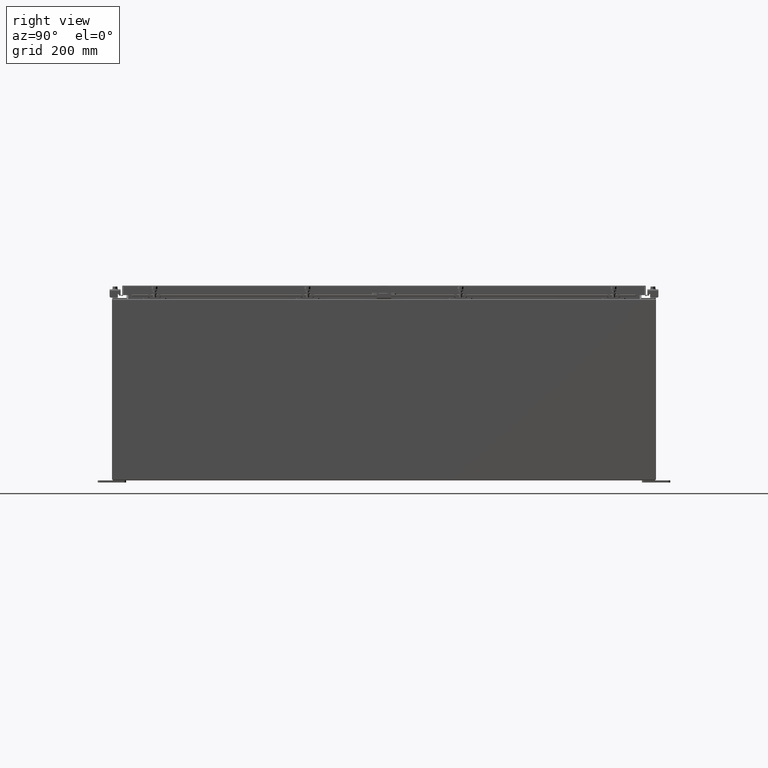
[diagram: clean part render]
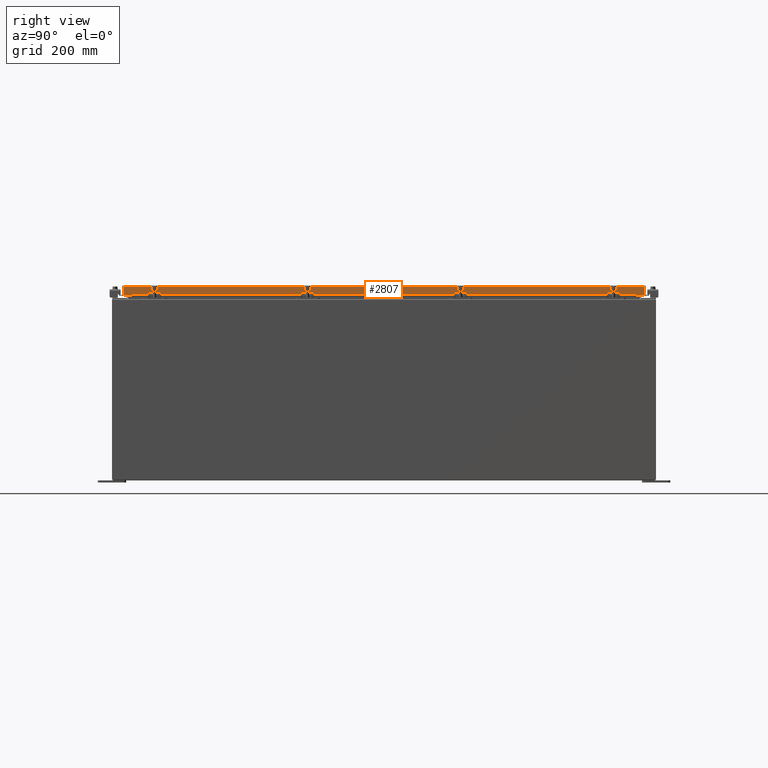
[diagram: same view with one face highlighted and labeled with its STEP entity id]
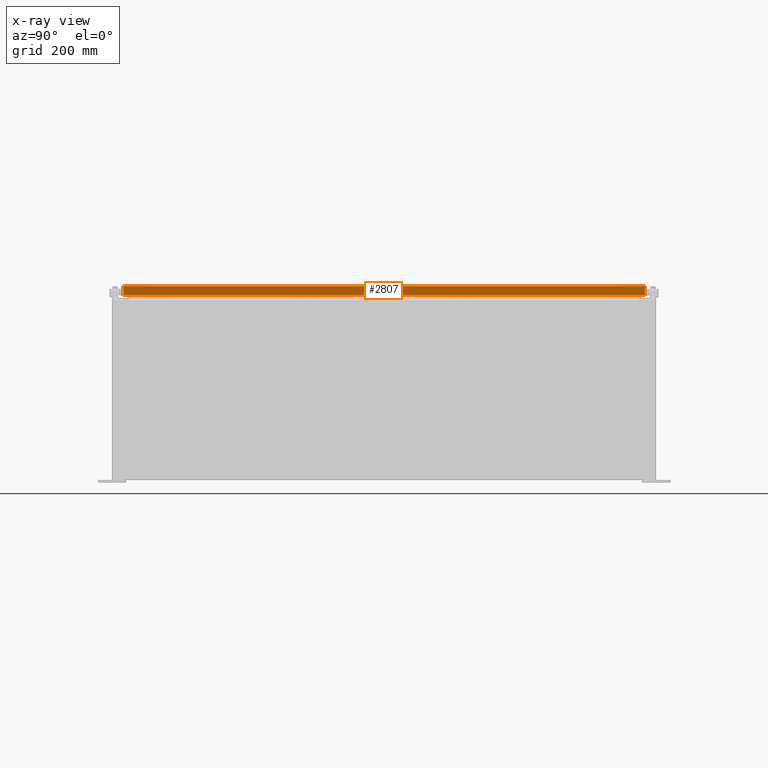
[diagram: x-ray of the same camera — body ghosted, the highlighted face saturated]
A machine part, right view. The second image highlights one B-rep face of the part: STEP entity #2807.
The next image is the same camera in x-ray: the body ghosted, the highlighted face saturated — about 0% of this face is hidden behind the body in this view.
In plain terms, the highlighted planar face has unit normal (1, 0, 0).
Its self-contained STEP definition (entity closure, byte-faithful):
#2590 = CARTESIAN_POINT ( 'NONE',  ( 17.07799999999999600, 22.25515786437628000, -0.8500000000000020900 ) ) ;
#2807 = ADVANCED_FACE ( 'NONE', ( #51925 ), #45065, .T. ) ;
#3238 = CARTESIAN_POINT ( 'NONE',  ( 17.07799999999999600, 22.25515786437627200, -0.8500000000000020900 ) ) ;
#6435 = EDGE_CURVE ( 'NONE', #14910, #16924, #51865, .T. ) ;
#7010 = AXIS2_PLACEMENT_3D ( 'NONE', #49175, #19476, #49351 ) ;
#10087 = CARTESIAN_POINT ( 'NONE',  ( 17.07799999999999900, -23.00515786437626900, -0.07470000000000015500 ) ) ;
#13737 = CARTESIAN_POINT ( 'NONE',  ( 17.07800000000000300, -23.09400000000000100, -0.8499999999999999800 ) ) ;
#13774 = VECTOR ( 'NONE', #19623, 39.37007874015748100 ) ;
#14459 = CARTESIAN_POINT ( 'NONE',  ( 17.07799999999999900, 23.00515786437627600, 2.098059259134154200E-013 ) ) ;
#14910 = VERTEX_POINT ( 'NONE', #53985 ) ;
#15601 = EDGE_LOOP ( 'NONE', ( #30521, #42739, #35129, #42772, #16709, #28397 ) ) ;
#16709 = ORIENTED_EDGE ( 'NONE', *, *, #41833, .T. ) ;
#16924 = VERTEX_POINT ( 'NONE', #25035 ) ;
#18760 = DIRECTION ( 'NONE',  ( -2.818880942772360100E-015, -6.982962677686267500E-015, 1.000000000000000000 ) ) ;
#18817 = EDGE_CURVE ( 'NONE', #52269, #23241, #36515, .T. ) ;
#19476 = DIRECTION ( 'NONE',  ( 1.000000000000000000, 0.0000000000000000000, 2.818880942772360100E-015 ) ) ;
#19623 = DIRECTION ( 'NONE',  ( 0.0000000000000000000, -1.000000000000000000, 0.0000000000000000000 ) ) ;
#21388 = VERTEX_POINT ( 'NONE', #42972 ) ;
#21394 = DIRECTION ( 'NONE',  ( 0.0000000000000000000, -1.000000000000000000, 0.0000000000000000000 ) ) ;
#23241 = VERTEX_POINT ( 'NONE', #46692 ) ;
#23939 = EDGE_CURVE ( 'NONE', #34540, #16924, #24168, .T. ) ;
#24168 = LINE ( 'NONE', #10087, #44216 ) ;
#25035 = CARTESIAN_POINT ( 'NONE',  ( 17.07799999999999900, -23.00515786437626900, -0.08770000000000026400 ) ) ;
#25094 = VECTOR ( 'NONE', #21394, 39.37007874015748100 ) ;
#28115 = LINE ( 'NONE', #14459, #48149 ) ;
#28397 = ORIENTED_EDGE ( 'NONE', *, *, #6435, .T. ) ;
#29167 = VECTOR ( 'NONE', #33123, 39.37007874015748100 ) ;
#29755 = VECTOR ( 'NONE', #43622, 39.37007874015748100 ) ;
#30521 = ORIENTED_EDGE ( 'NONE', *, *, #23939, .F. ) ;
#33123 = DIRECTION ( 'NONE',  ( 0.0000000000000000000, -1.000000000000000000, 0.0000000000000000000 ) ) ;
#33772 = CARTESIAN_POINT ( 'NONE',  ( 17.07800000000000300, -23.00515786437626200, -0.8499999999999999800 ) ) ;
#34540 = VERTEX_POINT ( 'NONE', #33772 ) ;
#35129 = ORIENTED_EDGE ( 'NONE', *, *, #18817, .F. ) ;
#35954 = DIRECTION ( 'NONE',  ( -2.818880942772360100E-015, -6.982962677686267500E-015, 1.000000000000000000 ) ) ;
#36515 = LINE ( 'NONE', #2590, #13774 ) ;
#37013 = CARTESIAN_POINT ( 'NONE',  ( 17.07799999999999900, 0.0000000000000000000, -0.08770000000000026400 ) ) ;
#41103 = LINE ( 'NONE', #13737, #29755 ) ;
#41833 = EDGE_CURVE ( 'NONE', #21388, #14910, #28115, .T. ) ;
#42698 = CARTESIAN_POINT ( 'NONE',  ( 17.07800000000000300, -23.09400000000000100, -0.8499999999999999800 ) ) ;
#42739 = ORIENTED_EDGE ( 'NONE', *, *, #48392, .F. ) ;
#42772 = ORIENTED_EDGE ( 'NONE', *, *, #48259, .F. ) ;
#42972 = CARTESIAN_POINT ( 'NONE',  ( 17.07800000000000300, 23.00515786437628000, -0.8499999999999999800 ) ) ;
#43622 = DIRECTION ( 'NONE',  ( 0.0000000000000000000, -1.000000000000000000, 0.0000000000000000000 ) ) ;
#44216 = VECTOR ( 'NONE', #35954, 39.37007874015748100 ) ;
#45065 = PLANE ( 'NONE',  #7010 ) ;
#46692 = CARTESIAN_POINT ( 'NONE',  ( 17.07799999999999600, -22.25515786437626200, -0.8500000000000020900 ) ) ;
#47801 = LINE ( 'NONE', #42698, #25094 ) ;
#48149 = VECTOR ( 'NONE', #18760, 39.37007874015748100 ) ;
#48259 = EDGE_CURVE ( 'NONE', #21388, #52269, #47801, .T. ) ;
#48392 = EDGE_CURVE ( 'NONE', #23241, #34540, #41103, .T. ) ;
#49175 = CARTESIAN_POINT ( 'NONE',  ( 17.07799999999999900, 0.0000000000000000000, 4.808052468849102900E-014 ) ) ;
#49351 = DIRECTION ( 'NONE',  ( 2.818880942772360100E-015, 0.0000000000000000000, -1.000000000000000000 ) ) ;
#51865 = LINE ( 'NONE', #37013, #29167 ) ;
#51925 = FACE_OUTER_BOUND ( 'NONE', #15601, .T. ) ;
#52269 = VERTEX_POINT ( 'NONE', #3238 ) ;
#53985 = CARTESIAN_POINT ( 'NONE',  ( 17.07799999999999900, 23.00515786437627200, -0.08770000000000026400 ) ) ;